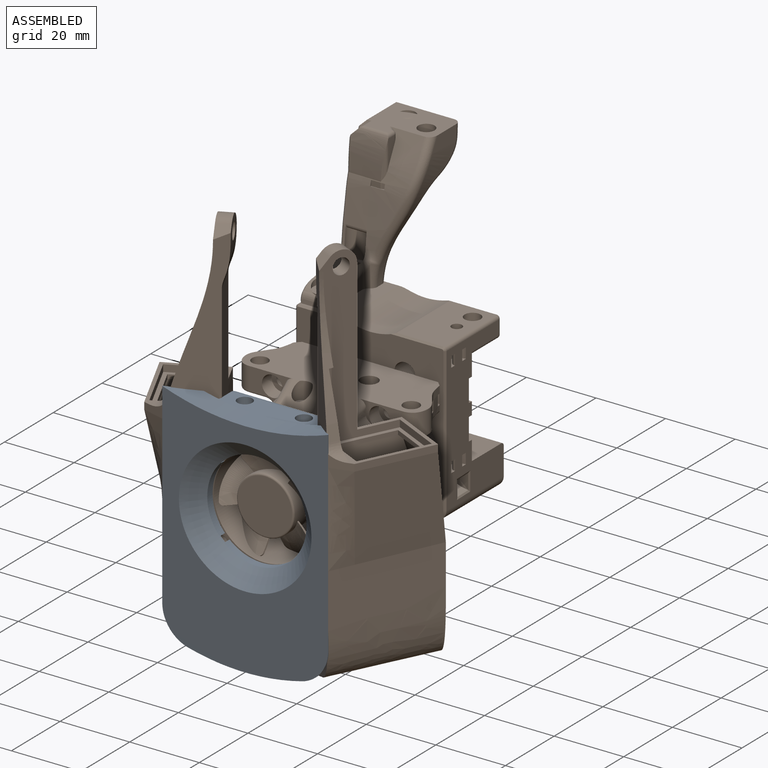
[diagram: assembled view]
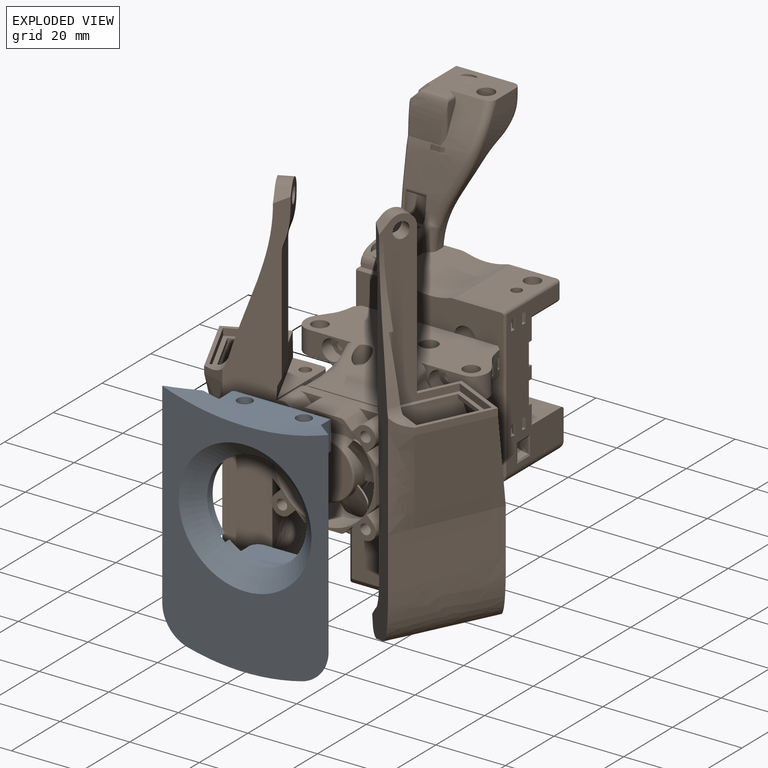
[diagram: exploded view]
GUIDED TOUR — FREECAD ASSEMBLY "MantisFrontPlate_v3"

This assembly has 2 components, labeled P0..P1 below (a component is one placed body or linked part; the same part can appear more than once), held together by 0 modeled joints plus 1 derived contact edge. A joint is a constraint between two components; its type names the relative motion it leaves free:
  CONTACT — a derived adjacency edge — the two components touch in the source model (clearance under 2% of the assembly's diagonal); it is measured from the geometry, not a modeled constraint.
Axis/direction vectors are unit vectors and 'through' points are millimeter coordinates, both in the assembly's world frame.

MATES
  1. CONTACT "contact_0_1": P0 <-> P1, contact direction (0.000, 1.000, 0.000) through (141.59, 105.18, 88.49) mm (derived from contact, not a modeled constraint)

ASSEMBLY ORDER
  1. P0 — the base component [order heuristic]
  2. P1 [order heuristic]
Order-tag legend:
  [order heuristic] — this assembly is geometrically interlocked (no collision-free removal order exists), so components are listed in mate-graph order; insertion feasibility is not verified.

Of the 2 components, 1 carries a construction recipe — the FreeCAD feature program (sketches with constraints, then the solid features that consume them) that regenerates the part from scratch, quoted from this document or from the linked companion document it references; the rest are supplied as boundary geometry only. The tour below walks the components in assembly order: each is shown spotlighted twice — in the assembled view, then in the exploded view, where a leader line traces a displaced component back to its assembled socket (components that stay in place when exploded have no leader line; saturated green if recipe-attached, orange if geometry-only; every other component desaturated gray) — followed by its recipe or geometry summary and the mates that hold it.
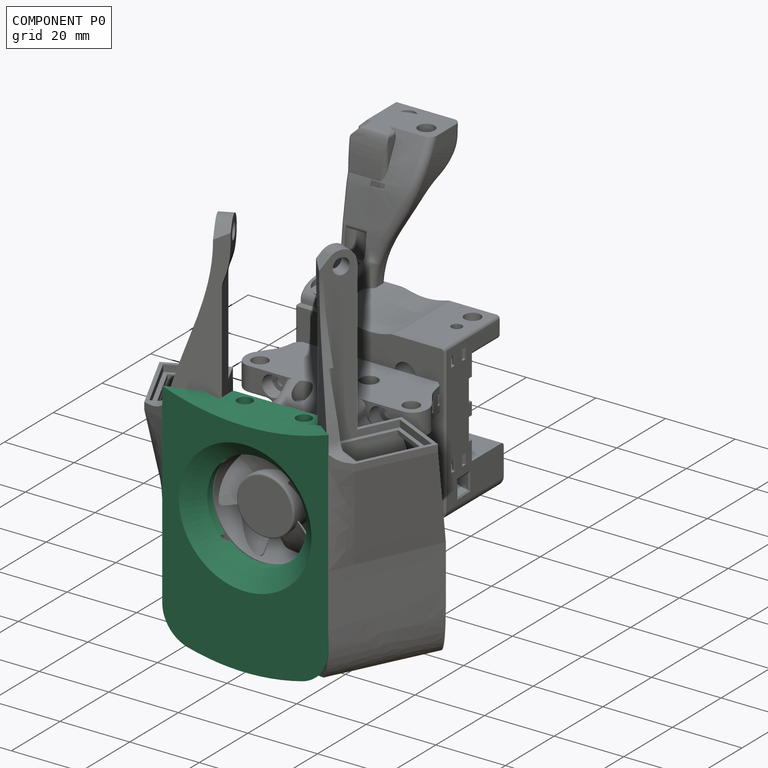
[diagram: component P0 — assembled]
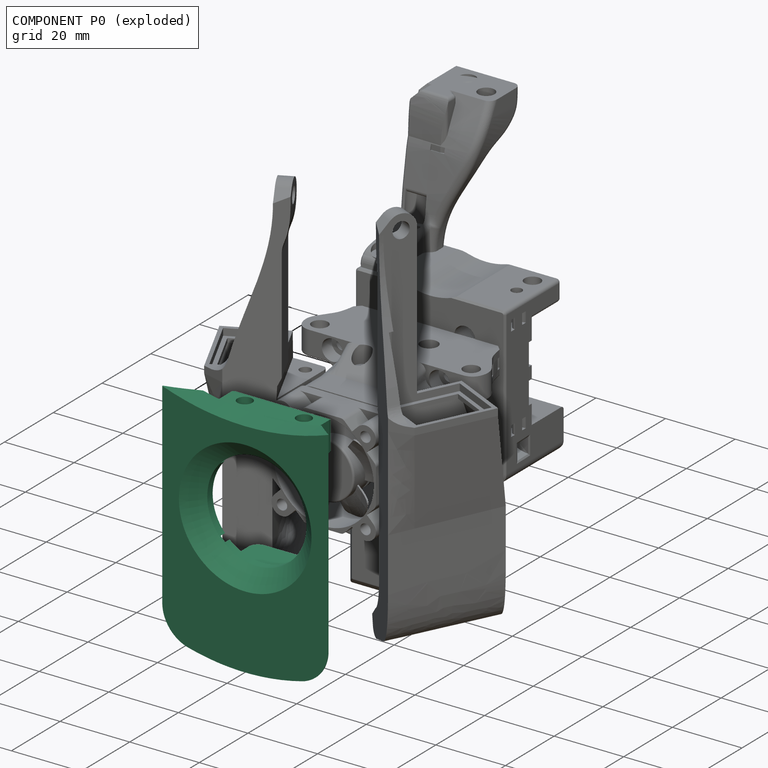
[diagram: component P0 — exploded]
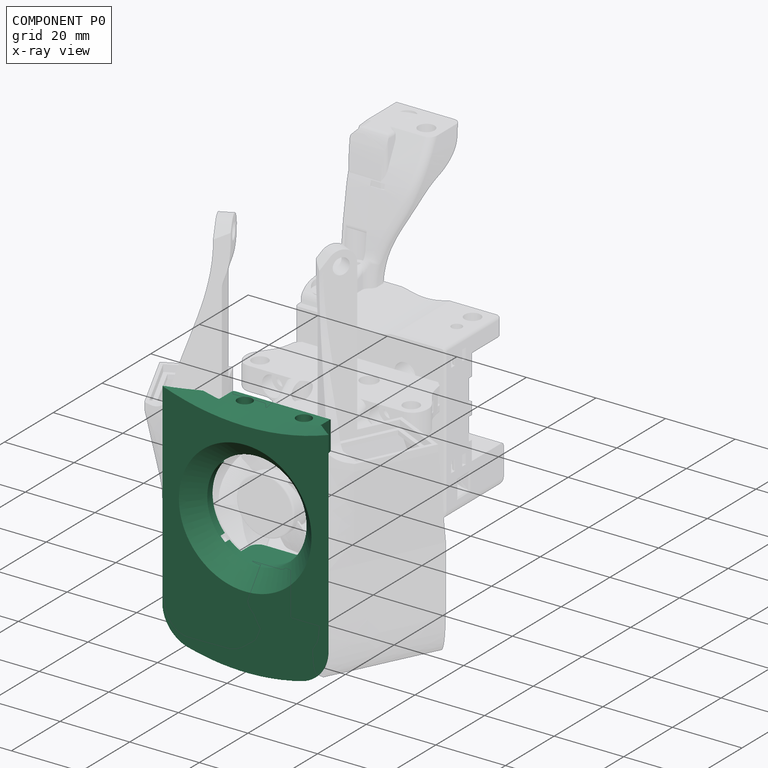
[diagram: component P0 — x-ray view]
COMPONENT P0 — recipe-attached ("FrontPlate", modeled in this document).
Held by: resting contact with P1 (derived edge).
Construction recipe (the document's own serialized feature program — sketch geometry with constraints, then the solid features built on it; lengths are millimeters unless a unit is written):

FEATURE [PartDesign::SubShapeBinder] Binder  label="Binder(3010 Fan)"
  BindCopyOnChange = 0
  BindMode = 0
  ClaimChildren = false
  Context = -> Body [Binder.]
  EdgeTolerance = 1e-06
  FillStyle = 0
  Fuse = false
  InvalidShape = false
  MakeFace = true
  MergeEdges = true
  OffsetFill = false
  OffsetIntersection = false
  OffsetJoinType = 0
  OffsetOpenResult = false
  Outline = false
  PartialLoad = false
  Relative = true
  SplitEdges = false
  Support = -> [Part015[Solid049.]]
  TightBound = false
  TreeRank = 482
  ValidateShape = false
  _Version = 8
FEATURE [PartDesign::SubShapeBinder] Binder001  label="Binder001(Duct)"
  BindCopyOnChange = 0
  BindMode = 0
  ClaimChildren = false
  Context = -> Body [Binder001.]
  EdgeTolerance = 1e-06
  FillStyle = 0
  Fuse = false
  InvalidShape = false
  MakeFace = true
  MergeEdges = true
  OffsetFill = false
  OffsetIntersection = false
  OffsetJoinType = 0
  OffsetOpenResult = false
  Outline = false
  PartialLoad = false
  Relative = true
  SplitEdges = false
  Support = -> [Part015[Compound005.]]
  TightBound = false
  TreeRank = 483
  ValidateShape = false
  _Version = 8
FEATURE [Part::SubShapeBinder] Import  label="Import(*Duct)"
  BindCopyOnChange = 0
  BindMode = 0
  ClaimChildren = false
  EdgeTolerance = 1e-06
  FillStyle = 0
  Fuse = false
  InvalidShape = false
  MakeFace = false
  MergeEdges = true
  OffsetFill = false
  OffsetIntersection = false
  OffsetJoinType = 0
  OffsetOpenResult = false
  Outline = false
  PartialLoad = false
  Relative = true
  SplitEdges = false
  Support = -> [Binder001]
  TightBound = false
  TreeRank = 487
  ValidateShape = false
  _Version = 8
FEATURE [PartDesign::Plane] DatumPlane
  AttachmentSupport = -> [Import]
  InvalidShape = false
  Length = 134.642
  MapMode = 13
  MinimumLength = 10
  MinimumWidth = 10
  Placement = pos=(134.642,97.8572,102.633) rot=(1,0,0;1.5708rad)
  ResizeMode = 0
  Support = -> [Import]
  TreeRank = 486
  ValidateShape = false
  Width = 102.633
FEATURE [Sketcher::SketchObject] Sketch  label="front_sk"
  ArcFitTolerance = 1e-06
  AttachmentSupport = -> [DatumPlane]
  ExternalBSplineMaxDegree = 5
  ExternalBSplineTolerance = 0.0001
  ExternalGeometry = -> [Binder,Import]
  FullyConstrained = false
  InternalTolerance = 1e-06
  InvalidShape = false
  MakeInternals = false
  MapMode = 5
  Placement = pos=(134.642,97.8572,102.633) rot=(1,0,0;1.5708rad)
  Support = -> [DatumPlane]
  TreeRank = 488
  ValidateShape = false
  sketch-geometry (9):
    g0: LineSegment StartX=15.8857 StartY=26.4702 StartZ=0 EndX=15.8857 EndY=-29.85 EndZ=0
    g1: ArcOfCircle CenterX=5.88575 CenterY=-29.85 CenterZ=0 NormalX=0 NormalY=0 NormalZ=1 AngleXU=0 Radius=10 StartAngle=4.96615 EndAngle=6.28319
    g2: ArcOfCircle CenterX=-21.7715 CenterY=-29.85 CenterZ=0 NormalX=0 NormalY=0 NormalZ=1 AngleXU=0 Radius=10 StartAngle=3.14159 EndAngle=4.45863
    g3: LineSegment StartX=-31.7715 StartY=-29.85 StartZ=0 EndX=-31.7715 EndY=26.4702 EndZ=0
    g4: GeomPoint [constr] X=-31.7715 Y=17.9702 Z=0
    g5: GeomPoint [constr] X=15.8857 Y=-39.5298 Z=0
    g6: ArcOfCircle CenterX=-7.94287 CenterY=93.4702 CenterZ=0 NormalX=0 NormalY=0 NormalZ=1 AngleXU=0 Radius=71.1112 StartAngle=4.37069 EndAngle=5.05409
    g7: Circle CenterX=-7.94287 CenterY=-1.52978 CenterZ=0 NormalX=0 NormalY=0 NormalZ=1 AngleXU=0 Radius=14.25
    g8: ArcOfCircle CenterX=-7.94287 CenterY=23.4702 CenterZ=0 NormalX=0 NormalY=0 NormalZ=1 AngleXU=0 Radius=65.0843 StartAngle=4.45863 EndAngle=4.96615
  constraints (22):
    c: Tangent(g0,g1) = 1.5708
    c: Tangent(g2,g3) = 1.5708
    c: Vertical(g0)
    c: Vertical(g3)
    c: Equal(g1,g2)
    c: PointOnObject(g4,g3)
    c: PointOnObject(g5,g0)
    c: Coincident(g4,g-4)
    c: Vertical(g0,g-5)
    c: Horizontal(g3,g0)
    c: Radius(g2) = 10
    c: Coincident(g7,g-3)
    c: Diameter(g7) = 28.5
    c: DistanceY(g7,g0) = 28
    c: DistanceY(g7,g6) = 95
    c: DistanceY(g1,g0) = 66
    c: Coincident(g6,g3)
    c: Coincident(g6,g0)
    c: Tangent(g8,g1) = -1.5708
    c: Tangent(g8,g2) = -1.5708
    c: Horizontal(g2,g1)
    c: DistanceY(g7,g8) = 25
FEATURE [PartDesign::Pad] Pad  label="front_pd"
  AddSubType = 0
  AlongSketchNormal = false
  AutoTaperInnerAngle = true
  CheckUpToFaceLimits = true
  ClaimChildren = false
  Direction = (4.2e-15,-1,-4e-16)
  Fit = 0
  FitJoin = 0
  InnerFit = 0
  InnerFitJoin = 0
  InvalidShape = false
  Length = 7
  Length2 = 10
  Linearize = true
  NewSolid = false
  Profile = -> Sketch
  ReferenceAxis = -> Sketch [N_Axis]
  Reversed = true
  Suppress = false
  TaperInnerAngle = 0
  TaperInnerAngleRev = 0
  TreeRank = 489
  Type = 0
  ValidateShape = true
  _ProfileBasedVersion = 1
FEATURE [Sketcher::SketchObject] Sketch001  label="ScrewRec_sk"
  ArcFitTolerance = 1e-06
  AttachmentSupport = -> [Pad]
  ExternalBSplineMaxDegree = 5
  ExternalBSplineTolerance = 0.0001
  ExternalGeometry = -> [Binder]
  FullyConstrained = true
  InternalTolerance = 1e-06
  InvalidShape = false
  MakeInternals = false
  MapMode = 5
  Placement = pos=(-4.384e-13,104.857,4.91e-14) rot=(0,0.707107,0.707107;3.14159rad)
  Support = -> [Pad]
  TreeRank = 490
  ValidateShape = false
  sketch-geometry (4):
    g0: Circle CenterX=-138.699 CenterY=113.103 CenterZ=0 NormalX=0 NormalY=0 NormalZ=1 AngleXU=0 Radius=2.9
    g1: Circle CenterX=-114.699 CenterY=113.103 CenterZ=0 NormalX=0 NormalY=0 NormalZ=1 AngleXU=0 Radius=2.9
    g2: Circle CenterX=-114.699 CenterY=89.103 CenterZ=0 NormalX=0 NormalY=0 NormalZ=1 AngleXU=0 Radius=2.9
    g3: Circle CenterX=-138.699 CenterY=89.103 CenterZ=0 NormalX=0 NormalY=0 NormalZ=1 AngleXU=0 Radius=2.9
  constraints (8):
    c: Coincident(g0,g-3)
    c: Coincident(g1,g-4)
    c: Coincident(g2,g-5)
    c: Coincident(g3,g-6)
    c: Equal(g3,g2)
    c: Equal(g2,g1)
    c: Equal(g1,g0)
    c: Diameter(g0) = 5.8
FEATURE [PartDesign::Pocket] Pocket  label="ScrewRec_pk"
  AddSubType = 1
  AlongSketchNormal = false
  AutoTaperInnerAngle = true
  BaseFeature = -> Pad
  CheckUpToFaceLimits = true
  ClaimChildren = false
  Direction = (4.2e-15,-1,-4e-16)
  Fit = 0
  FitJoin = 0
  InnerFit = 0
  InnerFitJoin = 0
  InvalidShape = false
  Length = 1.8
  Length2 = 10
  Linearize = true
  NewSolid = false
  Profile = -> Sketch001
  ReferenceAxis = -> Sketch001 [N_Axis]
  Suppress = false
  TaperInnerAngle = 0
  TaperInnerAngleRev = 0
  TreeRank = 491
  Type = 0
  ValidateShape = true
  _ProfileBasedVersion = 1
  _Version = 1
FEATURE [Sketcher::SketchObject] Sketch002  label="Clamp_sk"
  ArcFitTolerance = 1e-06
  AttachmentSupport = -> [Pocket]
  ExternalBSplineMaxDegree = 5
  ExternalBSplineTolerance = 0.0001
  ExternalGeometry = -> [Binder]
  FullyConstrained = true
  InternalTolerance = 1e-06
  InvalidShape = false
  MakeInternals = false
  MapMode = 5
  Placement = pos=(-4.384e-13,104.857,4.91e-14) rot=(0,0.707107,0.707107;3.14159rad)
  Support = -> [Pocket]
  TreeRank = 492
  ValidateShape = false
  expr: Constraints[21] = .Constraints.NoseTop_width / 2
  expr: Constraints[22] = .Constraints.NoseBtm_width / 2
  sketch-geometry (9):
    g0: LineSegment StartX=-140.699 StartY=124.803 StartZ=0 EndX=-112.699 EndY=124.803 EndZ=0
    g1: LineSegment StartX=-112.699 StartY=124.803 StartZ=0 EndX=-112.699 EndY=116.303 EndZ=0
    g2: LineSegment StartX=-112.699 StartY=116.303 StartZ=0 EndX=-140.699 EndY=116.303 EndZ=0
    g3: LineSegment StartX=-140.699 StartY=116.303 StartZ=0 EndX=-140.699 EndY=124.803 EndZ=0
    g4: LineSegment StartX=-135.699 StartY=85.903 StartZ=0 EndX=-117.699 EndY=85.903 EndZ=0
    g5: LineSegment StartX=-117.699 StartY=85.903 StartZ=0 EndX=-117.699 EndY=77.903 EndZ=0
    g6: LineSegment StartX=-117.699 StartY=77.903 StartZ=0 EndX=-135.699 EndY=77.903 EndZ=0
    g7: LineSegment StartX=-135.699 StartY=77.903 StartZ=0 EndX=-135.699 EndY=85.903 EndZ=0
    g8: GeomPoint [constr] X=-126.699 Y=116.103 Z=0
  constraints (25):
    c: Coincident(g0,g1)
    c: Coincident(g1,g2)
    c: Coincident(g2,g3)
    c: Coincident(g3,g0)
    c: Horizontal(g0)
    c: Horizontal(g2)
    c: Vertical(g1)
    c: Vertical(g3)
    c: Coincident(g4,g5)
    c: Coincident(g5,g6)
    c: Coincident(g6,g7)
    c: Coincident(g7,g4)
    c: Horizontal(g4)
    c: Horizontal(g6)
    c: Vertical(g5)
    c: Vertical(g7)
    c: DistanceY(g-3,g1) = 0.2
    c: DistanceY(g-4,g4) = -0.2
    c: DistanceX(g6,g6) = 18  'NoseBtm_width'
    c: DistanceX(g0,g0) = 28  'NoseTop_width'
    c: Symmetric(g-3,g-3,g8)
    c: DistanceX(g8,g1) = 14
    c: DistanceX(g8,g4) = 9
    c: DistanceY(g2,g0) = 8.5
    c: DistanceY(g7,g7) = 8
FEATURE [PartDesign::Pad] Pad001  label="Clamp_pd"
  AddSubType = 0
  AlongSketchNormal = false
  AutoTaperInnerAngle = true
  BaseFeature = -> Pocket
  CheckUpToFaceLimits = true
  ClaimChildren = false
  Direction = (-4.2e-15,1,4e-16)
  Fit = 0
  FitJoin = 0
  InnerFit = 0
  InnerFitJoin = 0
  InvalidShape = false
  Length = 10
  Length2 = 10
  Linearize = true
  NewSolid = false
  Profile = -> Sketch002
  ReferenceAxis = -> Sketch002 [N_Axis]
  Suppress = false
  TaperInnerAngle = 0
  TaperInnerAngleRev = 0
  TreeRank = 493
  Type = 0
  ValidateShape = true
  _ProfileBasedVersion = 1
FEATURE [PartDesign::Point] DatumPoint
  AttacherType = Attacher::AttachEnginePoint
  AttachmentSupport = -> [Binder]
  InvalidShape = false
  MapMode = 37
  Placement = pos=(126.699,106,101.103) rot=(0,0,1;0rad)
  Support = -> [Binder]
  TreeRank = 495
  ValidateShape = false
FEATURE [Sketcher::SketchObject] Sketch003  label="HeatSet_sk"
  ArcFitTolerance = 1e-06
  AttachmentSupport = -> [Pad001]
  ExternalBSplineMaxDegree = 5
  ExternalBSplineTolerance = 0.0001
  ExternalGeometry = -> [DatumPoint,Pad001]
  FullyConstrained = true
  InternalTolerance = 1e-06
  InvalidShape = false
  MakeInternals = false
  MapMode = 5
  Placement = pos=(0,-5.54e-14,124.803) rot=(0,0,1;0rad)
  Support = -> [Pad001]
  TreeRank = 494
  ValidateShape = false
  expr: Constraints[3] = <<Clamp_pd>>.Length / 2
  expr: Constraints[5] = .Constraints.HoleSpacing / 2
  sketch-geometry (2):
    g0: Circle CenterX=118.199 CenterY=109.857 CenterZ=0 NormalX=0 NormalY=0 NormalZ=1 AngleXU=0 Radius=2.14
    g1: Circle CenterX=135.199 CenterY=109.857 CenterZ=0 NormalX=0 NormalY=0 NormalZ=1 AngleXU=0 Radius=2.14
  constraints (6):
    c: Equal(g1,g0)
    c: Diameter(g0) = 4.28
    c: Horizontal(g0,g1)
    c: DistanceY(g0,g-4) = 5
    c: DistanceX(g0,g1) = 17  'HoleSpacing'
    c: DistanceX(g-3,g1) = 8.5
FEATURE [PartDesign::Pocket] Pocket001  label="HeatSet_pk"
  AddSubType = 1
  AlongSketchNormal = false
  AutoTaperInnerAngle = true
  BaseFeature = -> Pad001
  CheckUpToFaceLimits = true
  ClaimChildren = false
  Direction = (0,4e-16,-1)
  Fit = 0
  FitJoin = 0
  InnerFit = 0
  InnerFitJoin = 0
  InvalidShape = false
  Length = 4
  Length2 = 10
  Linearize = true
  NewSolid = false
  Profile = -> Sketch003
  ReferenceAxis = -> Sketch003 [N_Axis]
  Suppress = false
  TaperInnerAngle = 0
  TaperInnerAngleRev = 0
  TreeRank = 496
  Type = 0
  ValidateShape = true
  _ProfileBasedVersion = 1
  _Version = 1
FEATURE [Sketcher::SketchObject] Sketch004  label="M3throughHole_sk"
  ArcFitTolerance = 1e-06
  AttachmentSupport = -> [Pocket001]
  ExternalBSplineMaxDegree = 5
  ExternalBSplineTolerance = 0.0001
  ExternalGeometry = -> [Pocket001]
  FullyConstrained = true
  InternalTolerance = 1e-06
  InvalidShape = false
  MakeInternals = false
  MapMode = 5
  Placement = pos=(0,0,120.803) rot=(0,0,1;0rad)
  Support = -> [Pocket001]
  TreeRank = 497
  ValidateShape = false
  sketch-geometry (2):
    g0: Circle CenterX=118.199 CenterY=109.857 CenterZ=0 NormalX=0 NormalY=0 NormalZ=1 AngleXU=0 Radius=1.65
    g1: Circle CenterX=135.199 CenterY=109.857 CenterZ=0 NormalX=0 NormalY=0 NormalZ=1 AngleXU=0 Radius=1.65
  constraints (4):
    c: Coincident(g0,g-3)
    c: Coincident(g1,g-4)
    c: Equal(g1,g0)
    c: Diameter(g0) = 3.3
FEATURE [PartDesign::Pocket] Pocket002  label="M3throughHole_pk"
  AddSubType = 1
  AlongSketchNormal = false
  AutoTaperInnerAngle = true
  BaseFeature = -> Pocket001
  CheckUpToFaceLimits = true
  ClaimChildren = false
  Direction = (0,0,-1)
  Fit = 0
  FitJoin = 0
  InnerFit = 0
  InnerFitJoin = 0
  InvalidShape = false
  Length = 5
  Length2 = 10
  Linearize = true
  NewSolid = false
  Profile = -> Sketch004
  ReferenceAxis = -> Sketch004 [N_Axis]
  Suppress = false
  TaperInnerAngle = 0
  TaperInnerAngleRev = 0
  TreeRank = 498
  Type = 0
  ValidateShape = true
  _ProfileBasedVersion = 1
  _Version = 1
FEATURE [PartDesign::Chamfer] Chamfer
  AddSubType = 0
  Angle = 45
  Base = -> Pocket002 [Edge16,Edge17,Edge15,Edge7,Edge4]
  BaseFeature = -> Pocket002
  ChamferType = 0
  FlipDirection = false
  InvalidShape = false
  NewSolid = false
  Size = 6.8
  Size2 = 1
  SupportTransform = false
  Suppress = false
  TreeRank = 499
  UseAllEdges = false
  ValidateShape = true
FEATURE [Sketcher::SketchObject] Sketch005  label="led-pocket_sk"
  ArcFitTolerance = 1e-06
  AttachmentOffset = pos=(0,70,0) rot=(1,0,0;0.349066rad)
  AttachmentSupport = -> [Chamfer]
  ExternalBSplineMaxDegree = 5
  ExternalBSplineTolerance = 0.0001
  ExternalGeometry = -> [DatumPoint,Chamfer]
  FullyConstrained = true
  InternalTolerance = 1e-06
  InvalidShape = false
  MakeInternals = false
  MapMode = 5
  Placement = pos=(-4.384e-13,104.857,70) rot=(0,0.819152,0.573576;3.14159rad)
  Support = -> [Chamfer]
  TreeRank = 500
  ValidateShape = false
  expr: Constraints[8] = .Constraints.led_width / 2
  sketch-geometry (5):
    g0: LineSegment StartX=-138.699 StartY=7.11798 StartZ=0 EndX=-114.699 EndY=7.11798 EndZ=0
    g1: LineSegment StartX=-114.699 StartY=7.11798 StartZ=0 EndX=-114.699 EndY=0.617976 EndZ=0
    g2: LineSegment StartX=-114.699 StartY=0.617976 StartZ=0 EndX=-138.699 EndY=0.617976 EndZ=0
    g3: LineSegment StartX=-138.699 StartY=0.617976 StartZ=0 EndX=-138.699 EndY=7.11798 EndZ=0
    g4: GeomPoint [constr] X=-114.699 Y=0.617976 Z=0
  constraints (14):
    c: Horizontal(g0)
    c: Horizontal(g2)
    c: Vertical(g1)
    c: Vertical(g3)
    c: PointOnObject(g4,g1)
    c: PointOnObject(g4,g2)
    c: Coincident(g3,g0)
    c: Coincident(g0,g1)
    c: DistanceX(g-3,g0) = 12
    c: DistanceY(g2,g0) = 6.5
    c: DistanceY(g0,g-3) = 22.5
    c: Coincident(g3,g2)
    c: Coincident(g1,g2)
    c: DistanceX(g0,g0) = 24  'led_width'
FEATURE [PartDesign::Pocket] Pocket003  label="led-pocket_pk"
  AddSubType = 1
  AlongSketchNormal = false
  AutoTaperInnerAngle = false
  BaseFeature = -> Chamfer
  CheckUpToFaceLimits = true
  ClaimChildren = false
  Direction = (3.9e-15,-0.939693,0.34202)
  Fit = 0
  FitJoin = 0
  InnerFit = 0
  InnerFitJoin = 0
  InvalidShape = false
  Length = 2.6
  Length2 = 10
  Linearize = true
  NewSolid = false
  Profile = -> Sketch005
  ReferenceAxis = -> Sketch005 [N_Axis]
  Suppress = false
  TaperInnerAngle = 0
  TaperInnerAngleRev = 0
  TreeRank = 501
  Type = 0
  ValidateShape = true
  _ProfileBasedVersion = 1
  _Version = 1
FEATURE [Sketcher::SketchObject] Sketch006  label="Cable_route_sk"
  ArcFitTolerance = 1e-06
  AttachmentOffset = pos=(-1,-8.3,4.6) rot=(0,0,1;0rad)
  AttachmentSupport = -> [Pocket003]
  ExternalBSplineMaxDegree = 5
  ExternalBSplineTolerance = 0.0001
  FullyConstrained = true
  InternalTolerance = 1e-06
  InvalidShape = false
  MakeInternals = false
  MapMode = 47
  Placement = pos=(134.699,106.557,82.503) rot=(0,0,1;0rad)
  Support = -> [Pocket003]
  TreeRank = 502
  ValidateShape = false
  sketch-geometry (2):
    g0: Circle CenterX=0 CenterY=0 CenterZ=0 NormalX=0 NormalY=0 NormalZ=1 AngleXU=0 Radius=1.9
    g1: Circle CenterX=0 CenterY=0 CenterZ=0 NormalX=0 NormalY=0 NormalZ=1 AngleXU=0 Radius=4.4
  constraints (4):
    c: Coincident(g0,g-1)
    c: Coincident(g1,g0)
    c: Radius(g0) = 1.9
    c: Radius(g1) = 4.4
FEATURE [PartDesign::Pocket] Pocket004  label="CableRouteRight_pk"
  AddSubType = 1
  AlongSketchNormal = false
  AutoTaperInnerAngle = true
  BaseFeature = -> Pocket003
  CheckUpToFaceLimits = true
  ClaimChildren = false
  Direction = (0,0,-1)
  Fit = 0
  FitJoin = 0
  InnerFit = 0
  InnerFitJoin = 0
  InvalidShape = false
  Length = 2.8
  Length2 = 10
  Linearize = true
  NewSolid = false
  Profile = -> Sketch006
  ReferenceAxis = -> Sketch006 [N_Axis]
  Suppress = false
  TaperInnerAngle = 0
  TaperInnerAngleRev = 0
  TreeRank = 503
  Type = 0
  ValidateShape = true
  _ProfileBasedVersion = 1
  _Version = 1
FEATURE [Sketcher::SketchObject] Sketch007  label="Cable_route2_sk"
  ArcFitTolerance = 1e-06
  AttachmentOffset = pos=(1,-8.3,2) rot=(0,0,1;0rad)
  AttachmentSupport = -> [Pocket004]
  ExternalBSplineMaxDegree = 5
  ExternalBSplineTolerance = 0.0001
  FullyConstrained = true
  InternalTolerance = 1e-06
  InvalidShape = false
  MakeInternals = false
  MapMode = 7
  Placement = pos=(118.699,106.557,79.903) rot=(0,0,1;0rad)
  Support = -> [Pocket004]
  TreeRank = 504
  ValidateShape = false
  sketch-geometry (2):
    g0: Circle CenterX=0 CenterY=0 CenterZ=0 NormalX=0 NormalY=0 NormalZ=1 AngleXU=0 Radius=1.9
    g1: Circle CenterX=0 CenterY=0 CenterZ=0 NormalX=0 NormalY=0 NormalZ=1 AngleXU=0 Radius=4.4
  constraints (4):
    c: Coincident(g0,g-1)
    c: Coincident(g1,g0)
    c: Radius(g0) = 1.9
    c: Radius(g1) = 4.4
FEATURE [PartDesign::Pocket] Pocket005  label="CableRouteLeft_pk"
  AddSubType = 1
  AlongSketchNormal = false
  AutoTaperInnerAngle = true
  BaseFeature = -> Pocket004
  CheckUpToFaceLimits = true
  ClaimChildren = false
  Direction = (0,4e-16,-1)
  Fit = 0
  FitJoin = 0
  InnerFit = 0
  InnerFitJoin = 0
  InvalidShape = false
  Length = 2.8
  Length2 = 10
  Linearize = true
  NewSolid = false
  Profile = -> Sketch007
  ReferenceAxis = -> Sketch007 [N_Axis]
  Reversed = true
  Suppress = false
  TaperInnerAngle = 0
  TaperInnerAngleRev = 0
  TreeRank = 505
  Type = 0
  ValidateShape = true
  _ProfileBasedVersion = 1
  _Version = 1
FEATURE [PartDesign::Fillet] Fillet
  AddSubType = 0
  Base = -> Pocket005 [Edge135,Edge105,Edge125,Edge79,Edge84,Edge88]
  BaseFeature = -> Pocket005
  InvalidShape = false
  NewSolid = false
  Radius = 2.7
  SupportTransform = false
  Suppress = false
  TreeRank = 506
  UseAllEdges = false
  ValidateShape = true
FEATURE [PartDesign::Chamfer] Chamfer001
  AddSubType = 0
  Angle = 45
  Base = -> Fillet [Edge77]
  BaseFeature = -> Fillet
  ChamferType = 0
  FlipDirection = false
  InvalidShape = false
  NewSolid = false
  Size = 4.8
  Size2 = 1
  SupportTransform = false
  Suppress = false
  TreeRank = 507
  UseAllEdges = false
  ValidateShape = true
FEATURE [PartDesign::Chamfer] Chamfer002
  AddSubType = 0
  Angle = 45
  Base = -> Chamfer001 [Edge53]
  BaseFeature = -> Chamfer001
  ChamferType = 0
  FlipDirection = false
  InvalidShape = false
  NewSolid = false
  Size = 1.4
  Size2 = 1
  SupportTransform = false
  Suppress = false
  TreeRank = 508
  UseAllEdges = false
  ValidateShape = true
  _Siblings = -> [Chamfer001,Fillet,Pocket005,Pocket004,Pocket003,Chamfer,Pocket002,Pocket001,Pad001,Pocket,Pad]
FEATURE [PartDesign::Body] Body  label="FrontPlate"
  AutoGroupSolids = true
  ClaimAllChildren = false
  ExportMode = 0
  Group = -> [Binder,Binder001,DatumPlane,Import,Sketch,Sketch001,Sketch002,Sketch003,DatumPoint,Sketch004,Sketch005,Sketch006,Sketch007,Pad,Pocket,Pad001,Pocket001,Pocket002,Chamfer,Pocket003,Pocket004,Pocket005,Fillet,Chamfer001,Chamfer002]
  InvalidShape = false
  Origin = -> Origin016
  SingleSolid = true
  Tip = -> Chamfer002
  TreeRank = 481
  ValidateShape = false
  _ExportChildren = -> [Binder,Binder001,DatumPlane,Import,DatumPoint,Chamfer002]
  _GroupVersion = 1
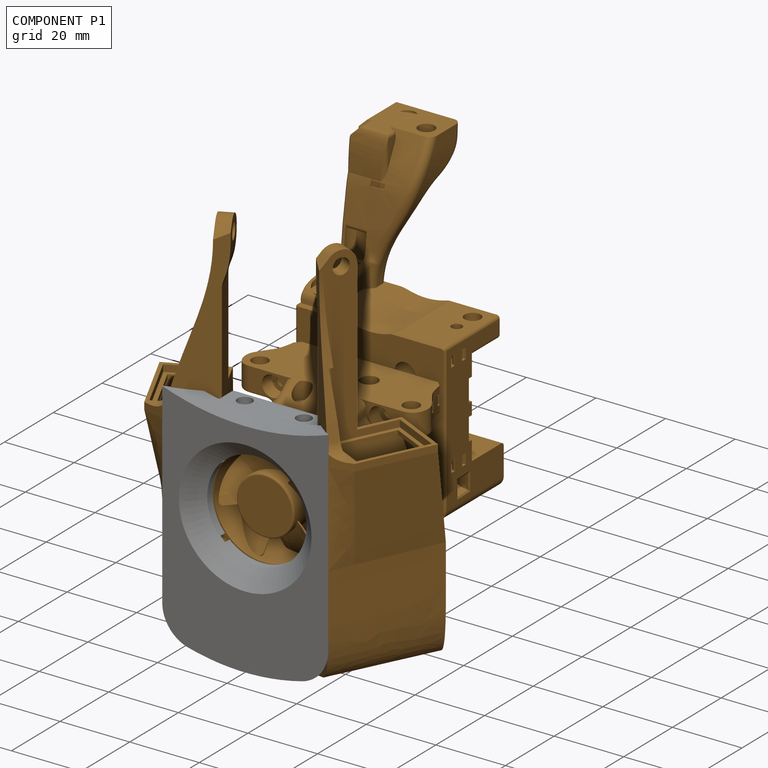
[diagram: component P1 — assembled]
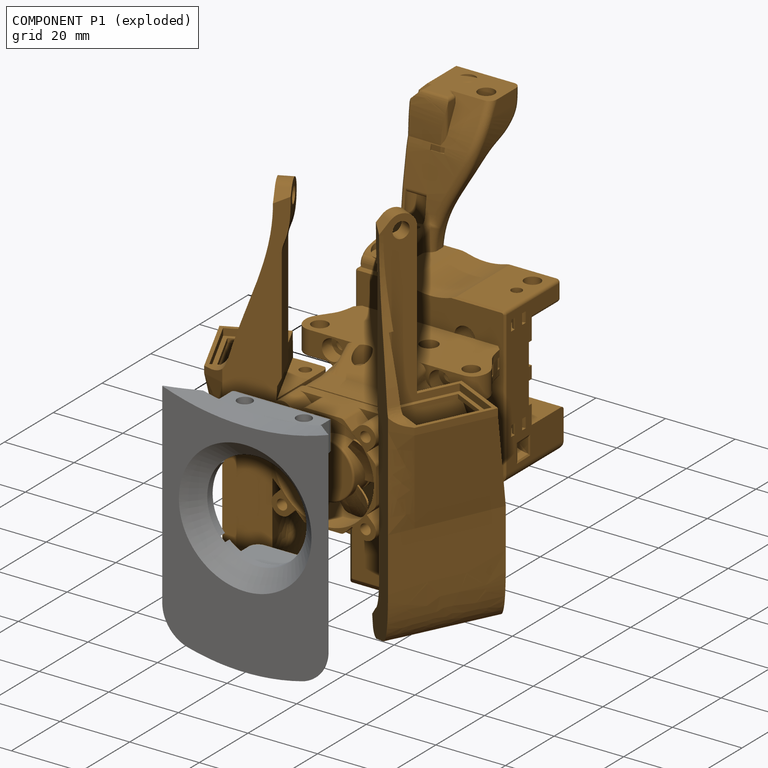
[diagram: component P1 — exploded]
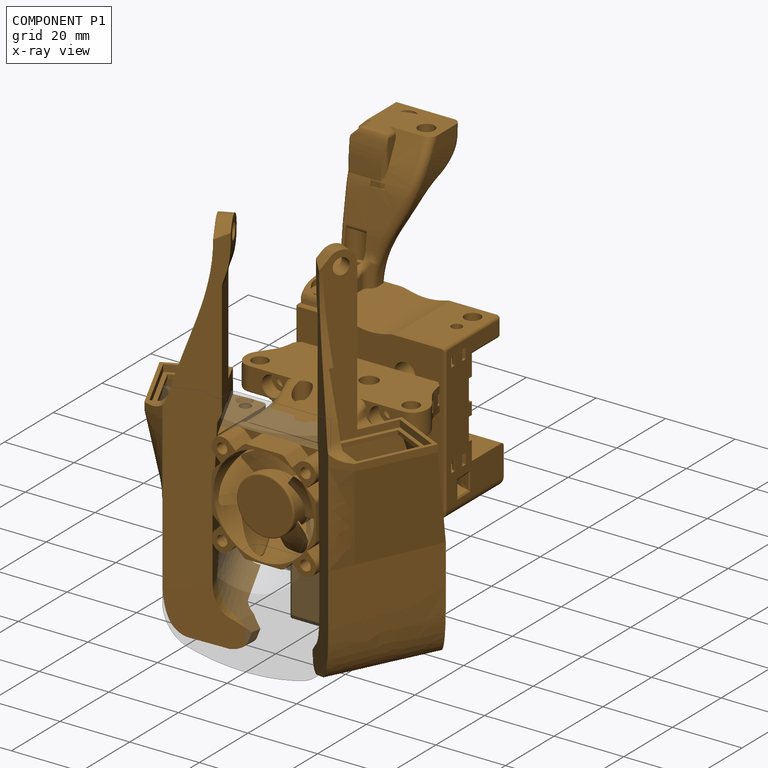
[diagram: component P1 — x-ray view]
COMPONENT P1 — geometry summary ("Mantis Dual 5015 Crazy Volcano v1.0 v35"; no construction recipe available for this part):
  bounding box: 112.2 x 89.3 x 80.0 mm
  tessellated surface: 251,536 triangles
  volume: 79764 mm^3 (10% of its bounding box)
Held by: resting contact with P0 (derived edge).
PROVENANCE & LICENSES
Assembly and component geometry: a FreeCAD (.FCStd) document from a public repository crawl; components, placements and joints were extracted with FreeCAD and each solid tessellated.
Construction recipes: the document's own serialized feature recipes (and, for linked parts, the recipes of companion documents from the same project).
License: gpl-3.0.
Joints: native FreeCAD joints and A2plus constraints are mapped to standard mate types; edges marked 'derived from contact' connect touching components and are measured from the geometry, not modeled.
Verification: 1 of this assembly's 2 components carries a construction recipe (1 from this document itself); the rest are geometry-only. Every component's tessellation passed the extraction mesh gates (mesh-volume checksum against the B-rep where available, bounding-box inflation <= 2%).
Renders: orthographic iso camera (az 35 / el 25); the floor grid conveys scale (grid pitch printed in each image; no ruler). In the exploded view each component is displaced by its stored offset vector: the offsets alone carry the explosion direction (mate normal/axis signs are not orientation cues and do not encode it), and separation distances are assigned per mate-chain, not proportionally to assembly-order depth.
